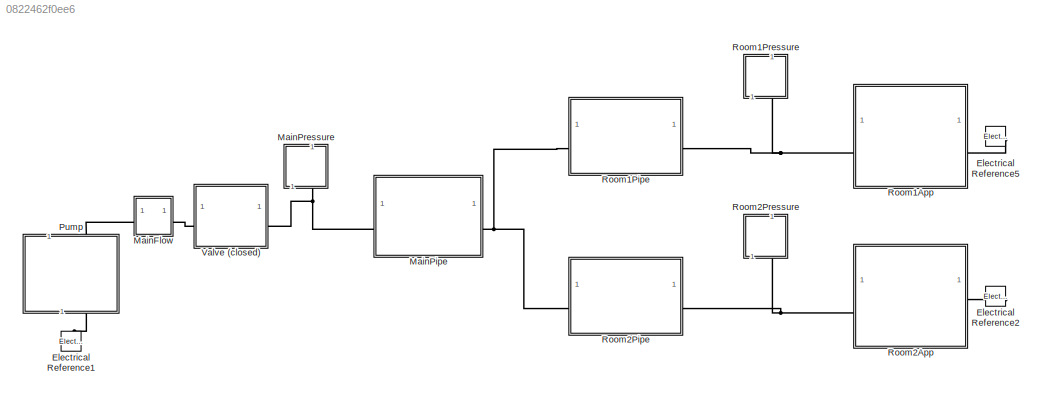
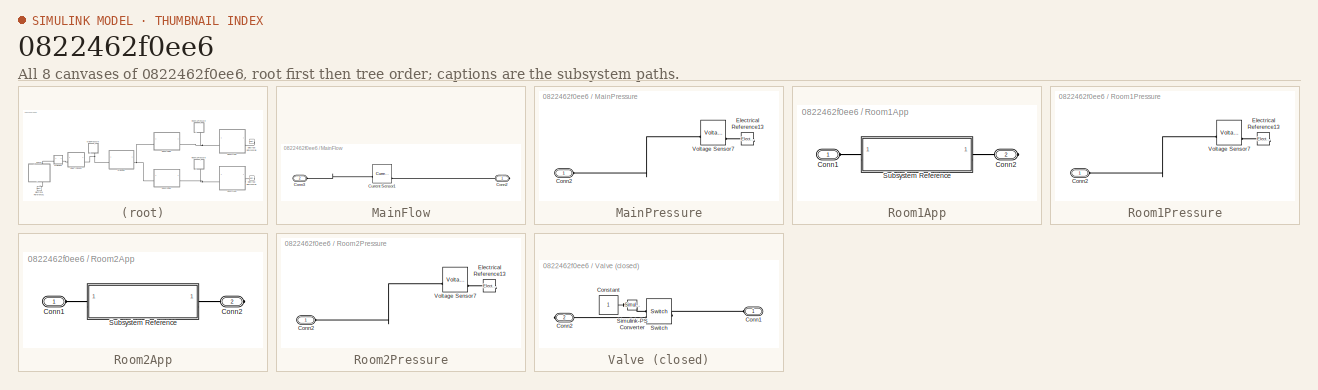
[diagram: thumbnail index - all 8 canvases of the model, root first then tree order]
MODEL slx_0822462f0ee6
KIND model
CONFIG AbsTol = 1e-3
CONFIG EnableMultiTasking = off
CONFIG FixedStep = auto
CONFIG MaxStep = auto
CONFIG MinStep = auto
CONFIG RelTol = 1e-3
CONFIG SampleTimeConstraint = Unconstrained
CONFIG SolverName = VariableStepAuto
CONFIG StartTime = 0.0
CONFIG StopTime = 10
BLOCK [Reference] Electrical Reference1  REF=fl_lib/Electrical/Electrical Elements/Electrical Reference
  SourceBlock = fl_lib/Electrical/Electrical Elements/Electrical Reference
  SourceType = Electrical Reference
BLOCK [Reference] Electrical Reference2  REF=fl_lib/Electrical/Electrical Elements/Electrical Reference
  NameLocation = right
  SourceBlock = fl_lib/Electrical/Electrical Elements/Electrical Reference
  SourceType = Electrical Reference
BLOCK [Reference] Electrical Reference5  REF=fl_lib/Electrical/Electrical Elements/Electrical Reference
  NameLocation = right
  SourceBlock = fl_lib/Electrical/Electrical Elements/Electrical Reference
  SourceType = Electrical Reference
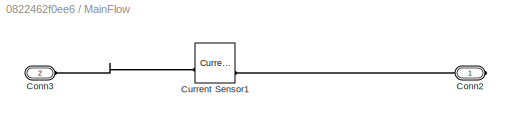
BLOCK [SubSystem] MainFlow
BLOCK [PMIOPort] MainFlow/Conn2
  Side = Right
BLOCK [PMIOPort] MainFlow/Conn3
  Port = 2
  Side = Left
BLOCK [Reference] MainFlow/Current Sensor1  REF=fl_lib/Electrical/Electrical Sensors/Current Sensor
  SourceBlock = fl_lib/Electrical/Electrical Sensors/Current Sensor
  SourceType = Current Sensor
BLOCK [SubSystem] MainPipe
  C = 1
  L = 1
  R = 1
  ReferencedSubsystem = PipeModel
  icon = on
BLOCK [SubSystem] MainPressure
  NameLocation = right
BLOCK [PMIOPort] MainPressure/Conn2
  Side = Left
BLOCK [Reference] MainPressure/Electrical Reference13  REF=fl_lib/Electrical/Electrical Elements/Electrical Reference
  NameLocation = right
  SourceBlock = fl_lib/Electrical/Electrical Elements/Electrical Reference
  SourceType = Electrical Reference
BLOCK [Reference] MainPressure/Voltage Sensor7  REF=fl_lib/Electrical/Electrical Sensors/Voltage Sensor
  SourceBlock = fl_lib/Electrical/Electrical Sensors/Voltage Sensor
  SourceType = Voltage Sensor
BLOCK [SubSystem] Pump
  NameLocation = right
  ReferencedSubsystem = PumpModel
  V = 1
  icon = on
BLOCK [SubSystem] Room1App
BLOCK [PMIOPort] Room1App/Conn1
  Side = Left
BLOCK [PMIOPort] Room1App/Conn2
  Port = 2
  Side = Right
BLOCK [SubSystem] Room1App/Subsystem Reference
  R = R
  ReferencedSubsystem = ApplianceModel
BLOCK [SubSystem] Room1Pipe
  C = 1
  L = 1
  R = 1
  ReferencedSubsystem = PipeModel
  icon = on
BLOCK [SubSystem] Room1Pressure
  NameLocation = right
BLOCK [PMIOPort] Room1Pressure/Conn2
  Side = Left
BLOCK [Reference] Room1Pressure/Electrical Reference13  REF=fl_lib/Electrical/Electrical Elements/Electrical Reference
  NameLocation = right
  SourceBlock = fl_lib/Electrical/Electrical Elements/Electrical Reference
  SourceType = Electrical Reference
BLOCK [Reference] Room1Pressure/Voltage Sensor7  REF=fl_lib/Electrical/Electrical Sensors/Voltage Sensor
  SourceBlock = fl_lib/Electrical/Electrical Sensors/Voltage Sensor
  SourceType = Voltage Sensor
BLOCK [SubSystem] Room2App
BLOCK [PMIOPort] Room2App/Conn1
  Side = Left
BLOCK [PMIOPort] Room2App/Conn2
  Port = 2
  Side = Right
BLOCK [SubSystem] Room2App/Subsystem Reference
  R = R
  ReferencedSubsystem = ApplianceModel
BLOCK [SubSystem] Room2Pipe
  C = 1
  L = 1
  R = 1
  ReferencedSubsystem = PipeModel
  icon = on
BLOCK [SubSystem] Room2Pressure
  NameLocation = right
BLOCK [PMIOPort] Room2Pressure/Conn2
  Side = Left
BLOCK [Reference] Room2Pressure/Electrical Reference13  REF=fl_lib/Electrical/Electrical Elements/Electrical Reference
  NameLocation = right
  SourceBlock = fl_lib/Electrical/Electrical Elements/Electrical Reference
  SourceType = Electrical Reference
BLOCK [Reference] Room2Pressure/Voltage Sensor7  REF=fl_lib/Electrical/Electrical Sensors/Voltage Sensor
  SourceBlock = fl_lib/Electrical/Electrical Sensors/Voltage Sensor
  SourceType = Voltage Sensor
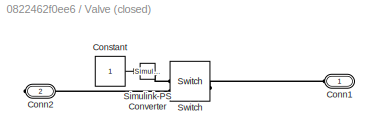
BLOCK [SubSystem] Valve (closed)
BLOCK [PMIOPort] Valve (closed)/Conn1
  Side = Left
BLOCK [PMIOPort] Valve (closed)/Conn2
  Port = 2
  Side = Right
BLOCK [Constant] Valve (closed)/Constant
BLOCK [Reference] Valve (closed)/Simulink-PS Converter  REF=nesl_utility/Simulink-PS
Converter
  SourceBlock = nesl_utility/Simulink-PS\nConverter
  SourceType = Simulink-PS\nConverter
BLOCK [Reference] Valve (closed)/Switch  REF=fl_lib/Electrical/Electrical Elements/Switch
  SourceBlock = fl_lib/Electrical/Electrical Elements/Switch
  SourceType = Switch
LINE Valve (closed)/Constant:1 -> Valve (closed)/Simulink-PS Converter:1
PLINE Electrical Reference1:LConn1 -- Pump:RConn1
PLINE Electrical Reference2:LConn1 -- Room2App:RConn1
PLINE Electrical Reference5:LConn1 -- Room1App:RConn1
PLINE MainFlow/Conn2:RConn1 -- MainFlow/Current Sensor1:RConn2
PLINE MainFlow/Conn3:RConn1 -- MainFlow/Current Sensor1:LConn1
PLINE MainFlow:LConn1 -- Pump:LConn1
PLINE MainFlow:RConn1 -- Valve (closed):RConn1
PNET net1: MainPipe:LConn1 -- MainPressure:LConn1 -- Valve (closed):LConn1
PNET net2: MainPipe:RConn1 -- Room1Pipe:LConn1 -- Room2Pipe:LConn1
PLINE MainPressure/Conn2:RConn1 -- MainPressure/Voltage Sensor7:LConn1
PLINE MainPressure/Electrical Reference13:LConn1 -- MainPressure/Voltage Sensor7:RConn2
PLINE Room1App/Conn1:RConn1 -- Room1App/Subsystem Reference:LConn1
PLINE Room1App/Conn2:RConn1 -- Room1App/Subsystem Reference:RConn1
PNET net3: Room1App:LConn1 -- Room1Pipe:RConn1 -- Room1Pressure:LConn1
PLINE Room1Pressure/Conn2:RConn1 -- Room1Pressure/Voltage Sensor7:LConn1
PLINE Room1Pressure/Electrical Reference13:LConn1 -- Room1Pressure/Voltage Sensor7:RConn2
PLINE Room2App/Conn1:RConn1 -- Room2App/Subsystem Reference:LConn1
PLINE Room2App/Conn2:RConn1 -- Room2App/Subsystem Reference:RConn1
PNET net4: Room2App:LConn1 -- Room2Pipe:RConn1 -- Room2Pressure:LConn1
PLINE Room2Pressure/Conn2:RConn1 -- Room2Pressure/Voltage Sensor7:LConn1
PLINE Room2Pressure/Electrical Reference13:LConn1 -- Room2Pressure/Voltage Sensor7:RConn2
PLINE Valve (closed)/Conn1:RConn1 -- Valve (closed)/Switch:LConn1
PLINE Valve (closed)/Conn2:RConn1 -- Valve (closed)/Switch:RConn2
PLINE Valve (closed)/Simulink-PS Converter:RConn1 -- Valve (closed)/Switch:RConn1
note: PNET lines group multi-terminal physical nets as a canonical sorted terminal list (undirected conserving connections); 2-terminal nets keep the pairwise PLINE form
